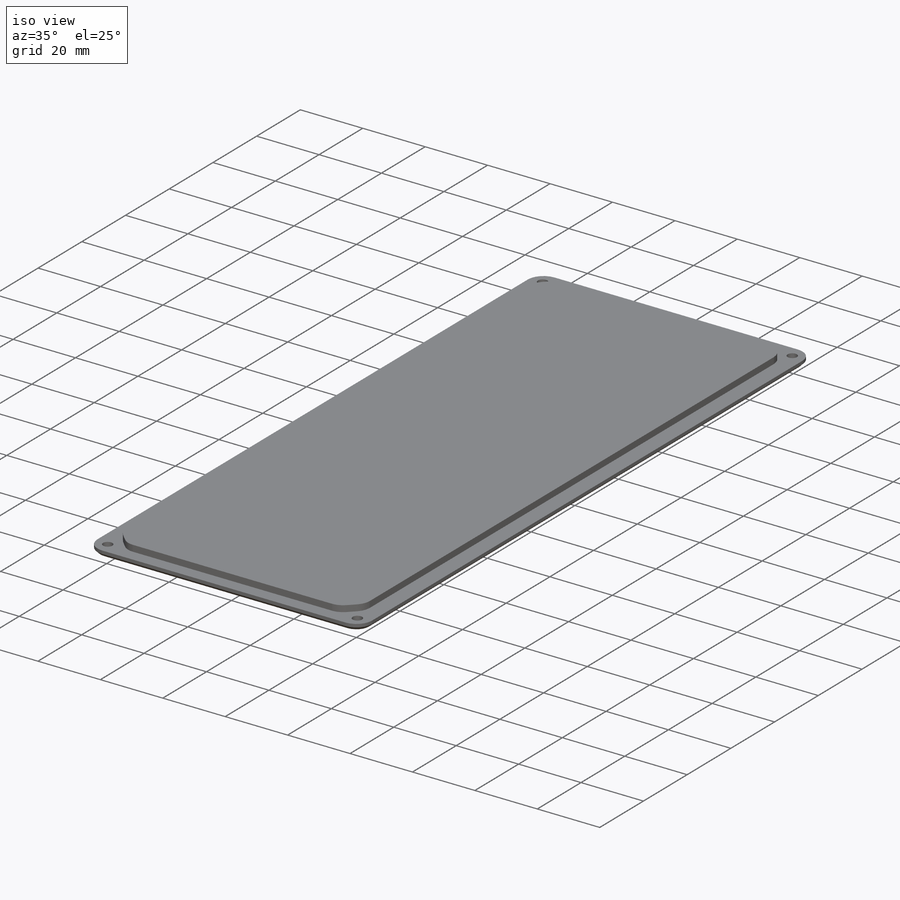
[diagram: iso view]
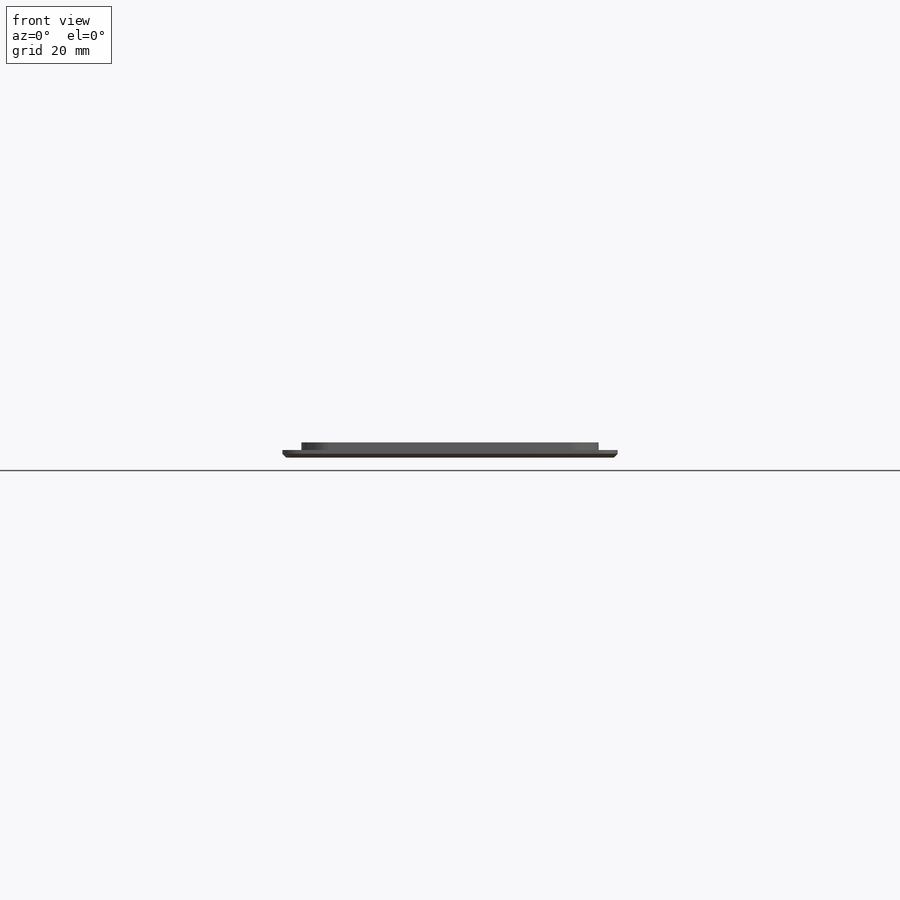
[diagram: front view]
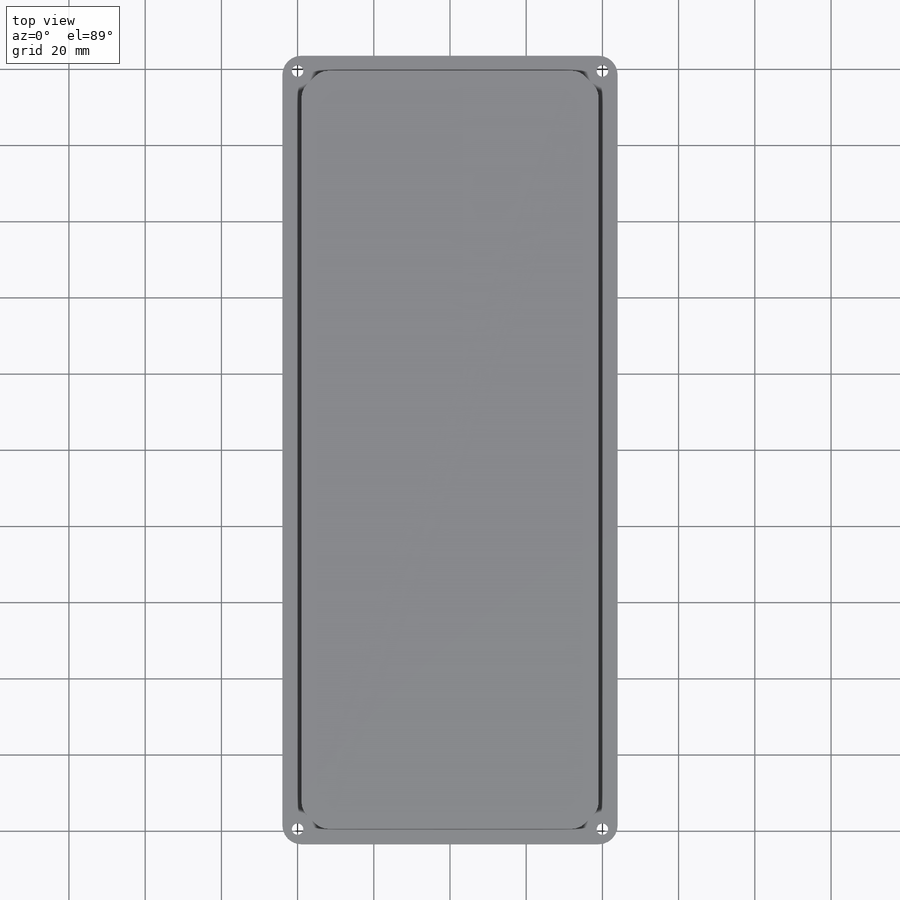
[diagram: top view]
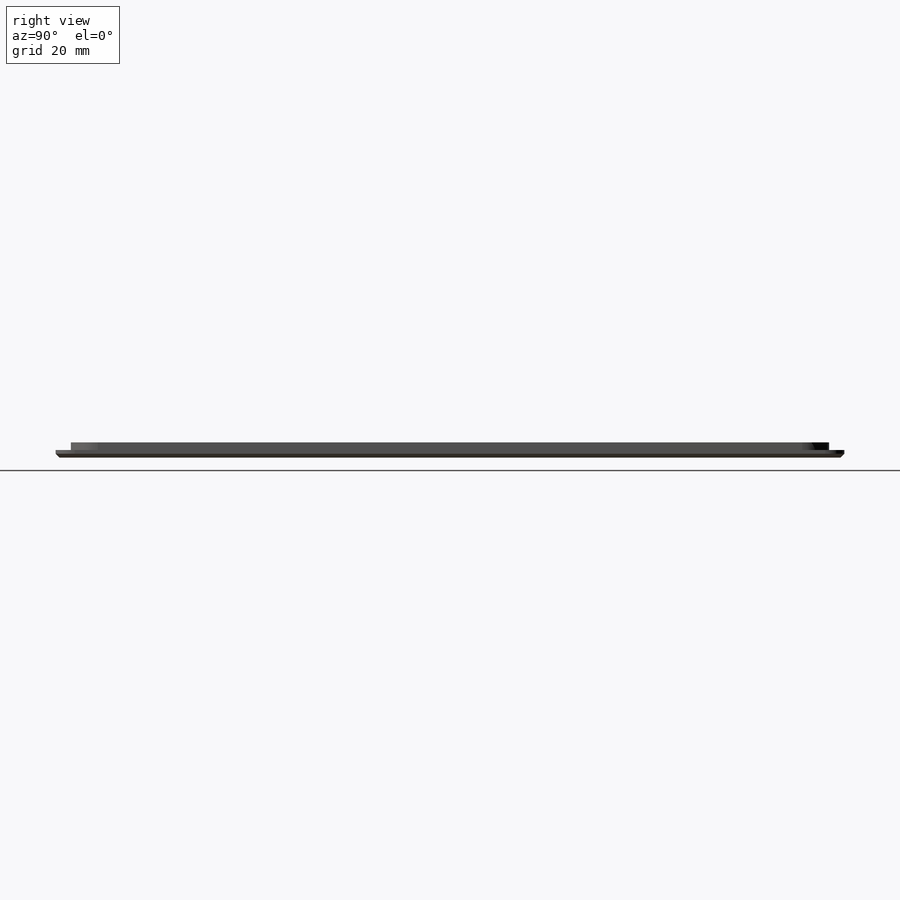
[diagram: right view]
SOLIDWORKS PART (.sldprt)
format: sldprt  version: not decoded by parser v0  size: 231,424 bytes
history: native  units: mm
features: sketch x4, extrude x2, chamfer x2, material x1, fillet x1, hole x1 (+12 scaffold rows collapsed)
feature tree (23):
  scaffold x12  (default folders/planes/origin — collapsed)
  material  "2014 Alloy"
  sketch  "Sketch1"  dims[c1.D1=~56.903753mm c1.D2=~110.00295mm c2.D1=88.0mm c2.D2=207.0mm]
  extrude  "Boss-Extrude1"  Depth=2mm
  sketch  "Sketch2"  dims[c1.D1=~196.606535mm c1.D2=~99.785639mm c2.D1=199.0mm c2.D2=5.0mm]
  extrude  "Boss-Extrude2"  Depth=2mm
  chamfer  "Chamfer1"  Distance=5mm Angle=45deg
  fillet  "Fillet1"  Radius=5mm
  hole  "Ø3.0mm Dowel Hole1"  Diameter=3mm Depth=17.29mm
  sketch  "Sketch4"  dims[D1=4.0mm D2=4.0mm D3=4.0mm D4=4.0mm]
  sketch  "Sketch3"  dims[hole-wizard template sketch: 50 standard entries collapsed; hole parameters above]
  chamfer  "Chamfer2"  Distance=1mm Angle=45deg
decode coverage: 10 of 10 modeling features carry decoded parameters
note: ~ marks probable driven/reference dimensions
note: suppression state not decoded; provenance and decode notes live in map.json
